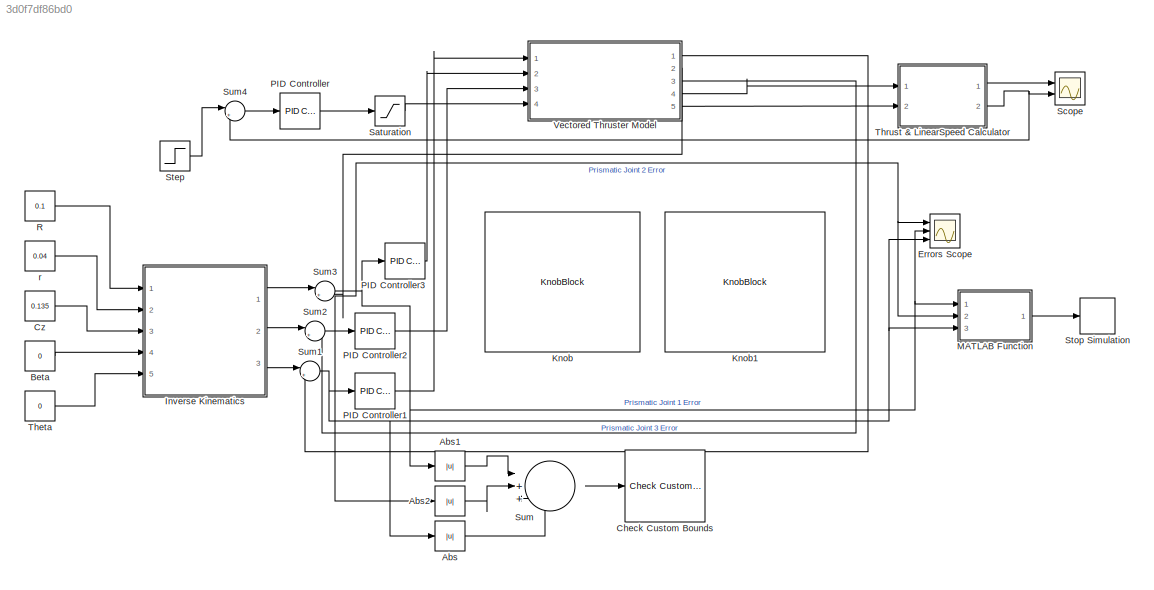
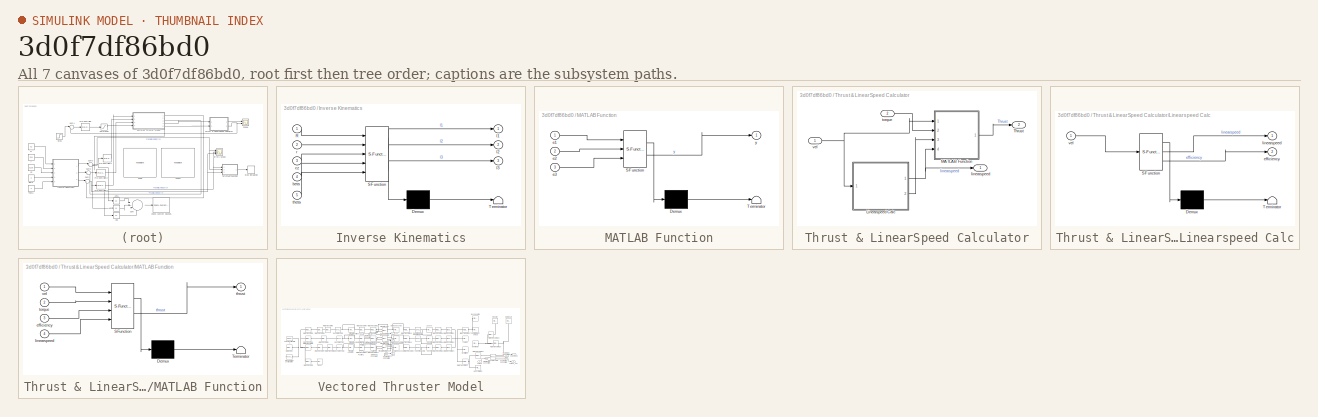
[diagram: thumbnail index - all 7 canvases of the model, root first then tree order]
MODEL slx_3d0f7df86bd0
KIND model
CONFIG AbsTol = auto
CONFIG EnableMultiTasking = off
CONFIG FixedStep = 0.0001
CONFIG MaxStep = auto
CONFIG MinStep = auto
CONFIG RelTol = 1e-3
CONFIG SampleTimeConstraint = Unconstrained
CONFIG SolverName = VariableStepAuto
CONFIG StartTime = 0.0
CONFIG StopTime = 50
BLOCK [Abs] Abs
  SaturateOnIntegerOverflow = off
BLOCK [Abs] Abs1
  SaturateOnIntegerOverflow = off
BLOCK [Abs] Abs2
  SaturateOnIntegerOverflow = off
BLOCK [Constant] Beta
  Value = 0
BLOCK [Reference] Check Custom Bounds  REF=checkpacklib/Check Custom Bounds
  InstantiateOnLoad = on
  Ports = [1]
  SourceBlock = checkpacklib/Check Custom Bounds
  SourceProductBaseCode = CT,ID,MT,SO
  SourceType = Checks_CustomBounds
BLOCK [Constant] Cz
  Value = 0.135
BLOCK [Scope] Errors Scope
  Floating = off
  NumInputPorts = 3
  Ports = [3]
  ScopeSpecificationString = Simulink.scopes.TimeScopeBlockCfg('CurrentConfiguration', extmgr.ConfigurationSet(extmgr.Configuration('Core','General UI',true),extmgr.Configuration('Core','Source UI',true),extmgr.Configuration('Sources','WiredSimulink',true,'DataLoggingVariableName','ScopeData2'),extmgr.Configuration('Visuals','Time Domain',true,'SerializedDisplays',{struct('MinYLimReal','-0.05642','MaxYLimReal','0.05958','YLab...<+1601ch>
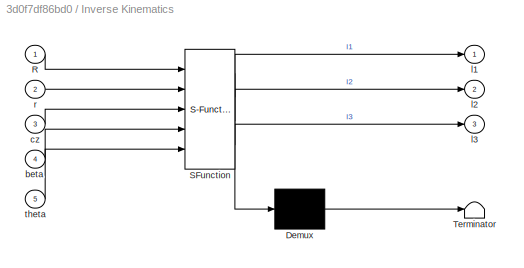
BLOCK [SubSystem] Inverse Kinematics
  ErrorFcn = Stateflow.Translate.translate
  PermitHierarchicalResolution = ExplicitOnly
  Ports = [5, 3]
  RequestExecContextInheritance = off
  SFBlockType = MATLAB Function
  TreatAsAtomicUnit = on
BLOCK [Demux] Inverse Kinematics/ Demux 
  Outputs = 1
  Ports = [1, 1]
BLOCK [S-Function] Inverse Kinematics/ SFunction 
  EnableBusSupport = on
  FunctionName = sf_sfun
  PortCounts = [5 4]
  Ports = [5, 4]
  SFcnIsStateOwnerBlock = off
  SFunctionDeploymentMode = off
  Tag = Stateflow S-Function 2
BLOCK [Terminator] Inverse Kinematics/ Terminator 
BLOCK [Inport] Inverse Kinematics/R
BLOCK [Inport] Inverse Kinematics/beta
  Port = 4
BLOCK [Inport] Inverse Kinematics/cz
  Port = 3
BLOCK [Outport] Inverse Kinematics/l1
BLOCK [Outport] Inverse Kinematics/l2
  Port = 2
BLOCK [Outport] Inverse Kinematics/l3
  Port = 3
BLOCK [Inport] Inverse Kinematics/r
  Port = 2
BLOCK [Inport] Inverse Kinematics/theta
  Port = 5
BLOCK [KnobBlock] Knob
  ScaleMax = 20
  ScaleMin = -20
  TickInterval = 5
BLOCK [KnobBlock] Knob1
  ScaleMax = 20
  ScaleMin = -20
  TickInterval = 5
BLOCK [SubSystem] MATLAB Function
  ErrorFcn = Stateflow.Translate.translate
  PermitHierarchicalResolution = ExplicitOnly
  Ports = [3, 1]
  RequestExecContextInheritance = off
  SFBlockType = MATLAB Function
  TreatAsAtomicUnit = on
BLOCK [Demux] MATLAB Function/ Demux 
  Outputs = 1
  Ports = [1, 1]
BLOCK [S-Function] MATLAB Function/ SFunction 
  EnableBusSupport = on
  FunctionName = sf_sfun
  PortCounts = [3 2]
  Ports = [3, 2]
  SFcnIsStateOwnerBlock = off
  SFunctionDeploymentMode = off
  Tag = Stateflow S-Function 1
BLOCK [Terminator] MATLAB Function/ Terminator 
BLOCK [Inport] MATLAB Function/e1
BLOCK [Inport] MATLAB Function/e2
  Port = 2
BLOCK [Inport] MATLAB Function/e3
  Port = 3
BLOCK [Outport] MATLAB Function/y
BLOCK [Reference] PID Controller  REF=slpidlib/PID Controller
  Ports = [1, 1]
  SourceBlock = slpidlib/PID Controller
  SourceProductBaseCode = SL
  SourceType = PID 1dof
BLOCK [Reference] PID Controller1  REF=slpidlib/PID Controller
  Ports = [1, 1]
  SourceBlock = slpidlib/PID Controller
  SourceProductBaseCode = SL
  SourceType = PID 1dof
BLOCK [Reference] PID Controller2  REF=slpidlib/PID Controller
  Ports = [1, 1]
  SourceBlock = slpidlib/PID Controller
  SourceProductBaseCode = SL
  SourceType = PID 1dof
BLOCK [Reference] PID Controller3  REF=slpidlib/PID Controller
  Ports = [1, 1]
  SourceBlock = slpidlib/PID Controller
  SourceProductBaseCode = SL
  SourceType = PID 1dof
BLOCK [Constant] R
  Value = 0.1
BLOCK [Saturate] Saturation
  LowerLimit = 0
  UpperLimit = 500
BLOCK [Scope] Scope
  Floating = off
  NumInputPorts = 2
  Ports = [2]
  ScopeSpecificationString = Simulink.scopes.TimeScopeBlockCfg('CurrentConfiguration', extmgr.ConfigurationSet(extmgr.Configuration('Core','General UI',true),extmgr.Configuration('Core','Source UI',true),extmgr.Configuration('Sources','WiredSimulink',true,'DataLoggingVariableName','ScopeData1'),extmgr.Configuration('Visuals','Time Domain',true),extmgr.Configuration('Tools','Plot Navigation',true),extmgr.Configuration('Tools',...<+40ch>
BLOCK [Step] Step
  After = 98
  SampleTime = 0
BLOCK [Stop] Stop Simulation
BLOCK [Sum] Sum
  Inputs = |+++
  Ports = [3, 1]
BLOCK [Sum] Sum1
  Inputs = |+-
  Ports = [2, 1]
BLOCK [Sum] Sum2
  Inputs = |+-
  Ports = [2, 1]
BLOCK [Sum] Sum3
  Inputs = |+-
  Ports = [2, 1]
BLOCK [Sum] Sum4
  Inputs = |+-
  Ports = [2, 1]
BLOCK [Constant] Theta
  Value = 0
BLOCK [SubSystem] Thrust & LinearSpeed Calculator
  Ports = [2, 2]
  RequestExecContextInheritance = off
BLOCK [SubSystem] Thrust & LinearSpeed Calculator/Linearspeed Calc
  ErrorFcn = Stateflow.Translate.translate
  PermitHierarchicalResolution = ExplicitOnly
  Ports = [1, 2]
  RequestExecContextInheritance = off
  SFBlockType = MATLAB Function
  TreatAsAtomicUnit = on
BLOCK [Demux] Thrust & LinearSpeed Calculator/Linearspeed Calc/ Demux 
  Outputs = 1
  Ports = [1, 1]
BLOCK [S-Function] Thrust & LinearSpeed Calculator/Linearspeed Calc/ SFunction 
  EnableBusSupport = on
  FunctionName = sf_sfun
  PortCounts = [1 3]
  Ports = [1, 3]
  SFcnIsStateOwnerBlock = off
  SFunctionDeploymentMode = off
  Tag = Stateflow S-Function 3
BLOCK [Terminator] Thrust & LinearSpeed Calculator/Linearspeed Calc/ Terminator 
BLOCK [Outport] Thrust & LinearSpeed Calculator/Linearspeed Calc/efficiency
  Port = 2
BLOCK [Outport] Thrust & LinearSpeed Calculator/Linearspeed Calc/linearspeed
BLOCK [Inport] Thrust & LinearSpeed Calculator/Linearspeed Calc/vel
BLOCK [SubSystem] Thrust & LinearSpeed Calculator/MATLAB Function
  ErrorFcn = Stateflow.Translate.translate
  PermitHierarchicalResolution = ExplicitOnly
  Ports = [4, 1]
  RequestExecContextInheritance = off
  SFBlockType = MATLAB Function
  TreatAsAtomicUnit = on
BLOCK [Demux] Thrust & LinearSpeed Calculator/MATLAB Function/ Demux 
  Outputs = 1
  Ports = [1, 1]
BLOCK [S-Function] Thrust & LinearSpeed Calculator/MATLAB Function/ SFunction 
  EnableBusSupport = on
  FunctionName = sf_sfun
  PortCounts = [4 2]
  Ports = [4, 2]
  SFcnIsStateOwnerBlock = off
  SFunctionDeploymentMode = off
  Tag = Stateflow S-Function 4
BLOCK [Terminator] Thrust & LinearSpeed Calculator/MATLAB Function/ Terminator 
BLOCK [Inport] Thrust & LinearSpeed Calculator/MATLAB Function/efficiency
  Port = 3
BLOCK [Inport] Thrust & LinearSpeed Calculator/MATLAB Function/linearspeed
  Port = 4
BLOCK [Outport] Thrust & LinearSpeed Calculator/MATLAB Function/thrust
BLOCK [Inport] Thrust & LinearSpeed Calculator/MATLAB Function/torque
  Port = 2
BLOCK [Inport] Thrust & LinearSpeed Calculator/MATLAB Function/vel
BLOCK [Outport] Thrust & LinearSpeed Calculator/Thrust
  Port = 2
BLOCK [Outport] Thrust & LinearSpeed Calculator/linearspeed
BLOCK [Inport] Thrust & LinearSpeed Calculator/torque
  Port = 2
BLOCK [Inport] Thrust & LinearSpeed Calculator/vel
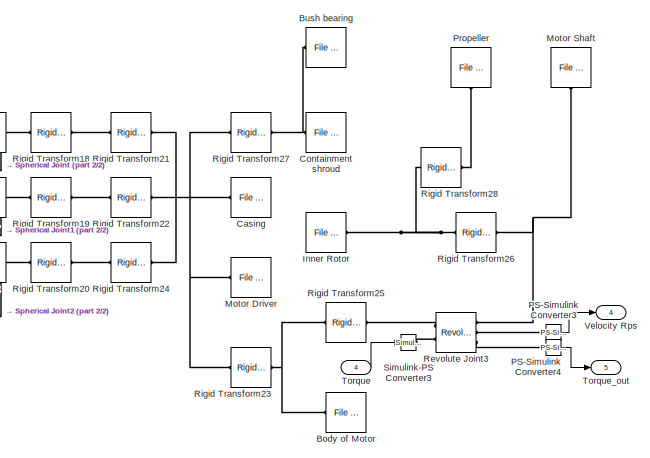
[diagram: Vectored Thruster Model - part 1/2, right side, full height]
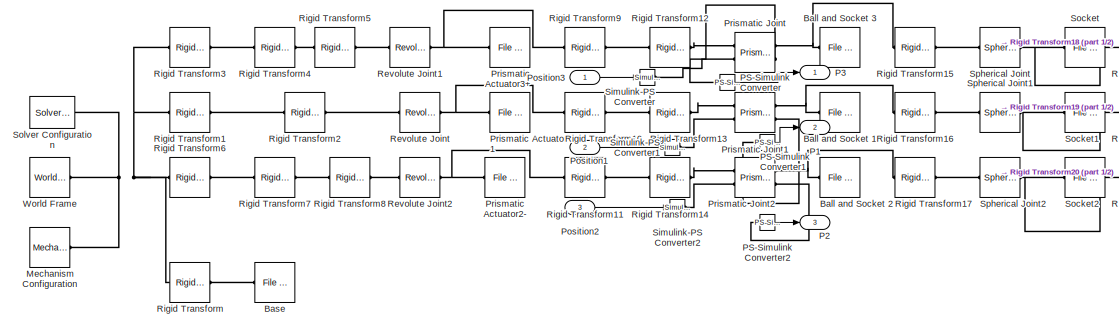
[diagram: Vectored Thruster Model - part 2/2, middle left region]
BLOCK [SubSystem] Vectored Thruster Model
  Ports = [4, 5]
  RequestExecContextInheritance = off
BLOCK [Reference] Vectored Thruster Model/Ball and Socket 1  REF=sm_lib/Body Elements/File Solid
  Ports = [0, 0, 0, 0, 0, 0, 1]
  SourceBlock = sm_lib/Body Elements/File Solid
  SourceProductBaseCode = MS
  SourceType = File Solid
BLOCK [Reference] Vectored Thruster Model/Ball and Socket 2  REF=sm_lib/Body Elements/File Solid
  Ports = [0, 0, 0, 0, 0, 0, 1]
  SourceBlock = sm_lib/Body Elements/File Solid
  SourceProductBaseCode = MS
  SourceType = File Solid
BLOCK [Reference] Vectored Thruster Model/Ball and Socket 3  REF=sm_lib/Body Elements/File Solid
  Ports = [0, 0, 0, 0, 0, 0, 1]
  SourceBlock = sm_lib/Body Elements/File Solid
  SourceProductBaseCode = MS
  SourceType = File Solid
BLOCK [Reference] Vectored Thruster Model/Base  REF=sm_lib/Body Elements/File Solid
  Ports = [0, 0, 0, 0, 0, 0, 1]
  SourceBlock = sm_lib/Body Elements/File Solid
  SourceProductBaseCode = MS
  SourceType = File Solid
BLOCK [Reference] Vectored Thruster Model/Body of Motor  REF=sm_lib/Body Elements/File Solid
  Ports = [0, 0, 0, 0, 0, 0, 1]
  SourceBlock = sm_lib/Body Elements/File Solid
  SourceProductBaseCode = MS
  SourceType = File Solid
BLOCK [Reference] Vectored Thruster Model/Bush bearing  REF=sm_lib/Body Elements/File Solid
  Ports = [0, 0, 0, 0, 0, 0, 1]
  SourceBlock = sm_lib/Body Elements/File Solid
  SourceProductBaseCode = MS
  SourceType = File Solid
BLOCK [Reference] Vectored Thruster Model/Casing  REF=sm_lib/Body Elements/File Solid
  Ports = [0, 0, 0, 0, 0, 0, 1]
  SourceBlock = sm_lib/Body Elements/File Solid
  SourceProductBaseCode = MS
  SourceType = File Solid
BLOCK [Reference] Vectored Thruster Model/Containment shroud  REF=sm_lib/Body Elements/File Solid
  Ports = [0, 0, 0, 0, 0, 0, 1]
  SourceBlock = sm_lib/Body Elements/File Solid
  SourceProductBaseCode = MS
  SourceType = File Solid
BLOCK [Reference] Vectored Thruster Model/Inner Rotor  REF=sm_lib/Body Elements/File Solid
  Ports = [0, 0, 0, 0, 0, 0, 1]
  SourceBlock = sm_lib/Body Elements/File Solid
  SourceProductBaseCode = MS
  SourceType = File Solid
BLOCK [Reference] Vectored Thruster Model/Mechanism Configuration  REF=sm_lib/Utilities/Mechanism
Configuration
  Ports = [0, 0, 0, 0, 0, 0, 1]
  SourceBlock = sm_lib/Utilities/Mechanism\nConfiguration
  SourceProductBaseCode = MS
  SourceType = Mechanism\nConfiguration
BLOCK [Reference] Vectored Thruster Model/Motor Driver  REF=sm_lib/Body Elements/File Solid
  Ports = [0, 0, 0, 0, 0, 0, 1]
  SourceBlock = sm_lib/Body Elements/File Solid
  SourceProductBaseCode = MS
  SourceType = File Solid
BLOCK [Reference] Vectored Thruster Model/Motor Shaft  REF=sm_lib/Body Elements/File Solid
  NameLocation = right
  Ports = [0, 0, 0, 0, 0, 0, 1]
  SourceBlock = sm_lib/Body Elements/File Solid
  SourceProductBaseCode = MS
  SourceType = File Solid
BLOCK [Outport] Vectored Thruster Model/P1
  Port = 2
BLOCK [Outport] Vectored Thruster Model/P2
  Port = 3
BLOCK [Outport] Vectored Thruster Model/P3
BLOCK [Reference] Vectored Thruster Model/PS-Simulink Converter  REF=nesl_utility/PS-Simulink
Converter
  Ports = [0, 1, 0, 0, 0, 1]
  SourceBlock = nesl_utility/PS-Simulink\nConverter
  SourceProductBaseCode = PW,SS
  SourceType = PS-Simulink\nConverter
BLOCK [Reference] Vectored Thruster Model/PS-Simulink Converter1  REF=nesl_utility/PS-Simulink
Converter
  Ports = [0, 1, 0, 0, 0, 1]
  SourceBlock = nesl_utility/PS-Simulink\nConverter
  SourceProductBaseCode = PW,SS
  SourceType = PS-Simulink\nConverter
BLOCK [Reference] Vectored Thruster Model/PS-Simulink Converter2  REF=nesl_utility/PS-Simulink
Converter
  Ports = [0, 1, 0, 0, 0, 1]
  SourceBlock = nesl_utility/PS-Simulink\nConverter
  SourceProductBaseCode = PW,SS
  SourceType = PS-Simulink\nConverter
BLOCK [Reference] Vectored Thruster Model/PS-Simulink Converter3  REF=nesl_utility/PS-Simulink
Converter
  Ports = [0, 1, 0, 0, 0, 1]
  SourceBlock = nesl_utility/PS-Simulink\nConverter
  SourceProductBaseCode = PW,SS
  SourceType = PS-Simulink\nConverter
BLOCK [Reference] Vectored Thruster Model/PS-Simulink Converter4  REF=nesl_utility/PS-Simulink
Converter
  Ports = [0, 1, 0, 0, 0, 1]
  SourceBlock = nesl_utility/PS-Simulink\nConverter
  SourceProductBaseCode = PW,SS
  SourceType = PS-Simulink\nConverter
BLOCK [Inport] Vectored Thruster Model/Position1
  Port = 2
BLOCK [Inport] Vectored Thruster Model/Position2
  Port = 3
BLOCK [Inport] Vectored Thruster Model/Position3
BLOCK [Reference] Vectored Thruster Model/Prismatic Actuator 1  REF=sm_lib/Body Elements/File Solid
  Ports = [0, 0, 0, 0, 0, 0, 1]
  SourceBlock = sm_lib/Body Elements/File Solid
  SourceProductBaseCode = MS
  SourceType = File Solid
BLOCK [Reference] Vectored Thruster Model/Prismatic Actuator2-  REF=sm_lib/Body Elements/File Solid
  Ports = [0, 0, 0, 0, 0, 0, 1]
  SourceBlock = sm_lib/Body Elements/File Solid
  SourceProductBaseCode = MS
  SourceType = File Solid
BLOCK [Reference] Vectored Thruster Model/Prismatic Actuator3+  REF=sm_lib/Body Elements/File Solid
  Ports = [0, 0, 0, 0, 0, 0, 1]
  SourceBlock = sm_lib/Body Elements/File Solid
  SourceProductBaseCode = MS
  SourceType = File Solid
BLOCK [Reference] Vectored Thruster Model/Prismatic Joint  REF=sm_lib/Joints/Prismatic
Joint
  Ports = [0, 0, 0, 0, 0, 2, 2]
  SourceBlock = sm_lib/Joints/Prismatic\nJoint
  SourceProductBaseCode = MS
  SourceType = Prismatic\nJoint
BLOCK [Reference] Vectored Thruster Model/Prismatic Joint1  REF=sm_lib/Joints/Prismatic
Joint
  Ports = [0, 0, 0, 0, 0, 2, 2]
  SourceBlock = sm_lib/Joints/Prismatic\nJoint
  SourceProductBaseCode = MS
  SourceType = Prismatic\nJoint
BLOCK [Reference] Vectored Thruster Model/Prismatic Joint2  REF=sm_lib/Joints/Prismatic
Joint
  Ports = [0, 0, 0, 0, 0, 2, 2]
  SourceBlock = sm_lib/Joints/Prismatic\nJoint
  SourceProductBaseCode = MS
  SourceType = Prismatic\nJoint
BLOCK [Reference] Vectored Thruster Model/Propeller  REF=sm_lib/Body Elements/File Solid
  NameLocation = left
  Ports = [0, 0, 0, 0, 0, 0, 1]
  SourceBlock = sm_lib/Body Elements/File Solid
  SourceProductBaseCode = MS
  SourceType = File Solid
BLOCK [Reference] Vectored Thruster Model/Revolute Joint  REF=sm_lib/Joints/Revolute Joint
  Ports = [0, 0, 0, 0, 0, 1, 1]
  SourceBlock = sm_lib/Joints/Revolute Joint
  SourceProductBaseCode = MS
  SourceType = Revolute Joint
BLOCK [Reference] Vectored Thruster Model/Revolute Joint1  REF=sm_lib/Joints/Revolute Joint
  Ports = [0, 0, 0, 0, 0, 1, 1]
  SourceBlock = sm_lib/Joints/Revolute Joint
  SourceProductBaseCode = MS
  SourceType = Revolute Joint
BLOCK [Reference] Vectored Thruster Model/Revolute Joint2  REF=sm_lib/Joints/Revolute Joint
  Ports = [0, 0, 0, 0, 0, 1, 1]
  SourceBlock = sm_lib/Joints/Revolute Joint
  SourceProductBaseCode = MS
  SourceType = Revolute Joint
BLOCK [Reference] Vectored Thruster Model/Revolute Joint3  REF=sm_lib/Joints/Revolute Joint
  Ports = [0, 0, 0, 0, 0, 2, 3]
  SourceBlock = sm_lib/Joints/Revolute Joint
  SourceProductBaseCode = MS
  SourceType = Revolute Joint
BLOCK [Reference] Vectored Thruster Model/Rigid Transform  REF=sm_lib/Frames and
Transforms/Rigid
Transform
  Ports = [0, 0, 0, 0, 0, 1, 1]
  SourceBlock = sm_lib/Frames and\nTransforms/Rigid\nTransform
  SourceProductBaseCode = MS
  SourceType = Rigid\nTransform
BLOCK [Reference] Vectored Thruster Model/Rigid Transform1  REF=sm_lib/Frames and
Transforms/Rigid
Transform
  Ports = [0, 0, 0, 0, 0, 1, 1]
  SourceBlock = sm_lib/Frames and\nTransforms/Rigid\nTransform
  SourceProductBaseCode = MS
  SourceType = Rigid\nTransform
BLOCK [Reference] Vectored Thruster Model/Rigid Transform10  REF=sm_lib/Frames and
Transforms/Rigid
Transform
  Ports = [0, 0, 0, 0, 0, 1, 1]
  SourceBlock = sm_lib/Frames and\nTransforms/Rigid\nTransform
  SourceProductBaseCode = MS
  SourceType = Rigid\nTransform
BLOCK [Reference] Vectored Thruster Model/Rigid Transform11  REF=sm_lib/Frames and
Transforms/Rigid
Transform
  Ports = [0, 0, 0, 0, 0, 1, 1]
  SourceBlock = sm_lib/Frames and\nTransforms/Rigid\nTransform
  SourceProductBaseCode = MS
  SourceType = Rigid\nTransform
BLOCK [Reference] Vectored Thruster Model/Rigid Transform12  REF=sm_lib/Frames and
Transforms/Rigid
Transform
  Ports = [0, 0, 0, 0, 0, 1, 1]
  SourceBlock = sm_lib/Frames and\nTransforms/Rigid\nTransform
  SourceProductBaseCode = MS
  SourceType = Rigid\nTransform
BLOCK [Reference] Vectored Thruster Model/Rigid Transform13  REF=sm_lib/Frames and
Transforms/Rigid
Transform
  Ports = [0, 0, 0, 0, 0, 1, 1]
  SourceBlock = sm_lib/Frames and\nTransforms/Rigid\nTransform
  SourceProductBaseCode = MS
  SourceType = Rigid\nTransform
BLOCK [Reference] Vectored Thruster Model/Rigid Transform14  REF=sm_lib/Frames and
Transforms/Rigid
Transform
  Ports = [0, 0, 0, 0, 0, 1, 1]
  SourceBlock = sm_lib/Frames and\nTransforms/Rigid\nTransform
  SourceProductBaseCode = MS
  SourceType = Rigid\nTransform
BLOCK [Reference] Vectored Thruster Model/Rigid Transform15  REF=sm_lib/Frames and
Transforms/Rigid
Transform
  Ports = [0, 0, 0, 0, 0, 1, 1]
  SourceBlock = sm_lib/Frames and\nTransforms/Rigid\nTransform
  SourceProductBaseCode = MS
  SourceType = Rigid\nTransform
BLOCK [Reference] Vectored Thruster Model/Rigid Transform16  REF=sm_lib/Frames and
Transforms/Rigid
Transform
  Ports = [0, 0, 0, 0, 0, 1, 1]
  SourceBlock = sm_lib/Frames and\nTransforms/Rigid\nTransform
  SourceProductBaseCode = MS
  SourceType = Rigid\nTransform
BLOCK [Reference] Vectored Thruster Model/Rigid Transform17  REF=sm_lib/Frames and
Transforms/Rigid
Transform
  Ports = [0, 0, 0, 0, 0, 1, 1]
  SourceBlock = sm_lib/Frames and\nTransforms/Rigid\nTransform
  SourceProductBaseCode = MS
  SourceType = Rigid\nTransform
BLOCK [Reference] Vectored Thruster Model/Rigid Transform18  REF=sm_lib/Frames and
Transforms/Rigid
Transform
  Ports = [0, 0, 0, 0, 0, 1, 1]
  SourceBlock = sm_lib/Frames and\nTransforms/Rigid\nTransform
  SourceProductBaseCode = MS
  SourceType = Rigid\nTransform
BLOCK [Reference] Vectored Thruster Model/Rigid Transform19  REF=sm_lib/Frames and
Transforms/Rigid
Transform
  Ports = [0, 0, 0, 0, 0, 1, 1]
  SourceBlock = sm_lib/Frames and\nTransforms/Rigid\nTransform
  SourceProductBaseCode = MS
  SourceType = Rigid\nTransform
BLOCK [Reference] Vectored Thruster Model/Rigid Transform2  REF=sm_lib/Frames and
Transforms/Rigid
Transform
  Ports = [0, 0, 0, 0, 0, 1, 1]
  SourceBlock = sm_lib/Frames and\nTransforms/Rigid\nTransform
  SourceProductBaseCode = MS
  SourceType = Rigid\nTransform
BLOCK [Reference] Vectored Thruster Model/Rigid Transform20  REF=sm_lib/Frames and
Transforms/Rigid
Transform
  Ports = [0, 0, 0, 0, 0, 1, 1]
  SourceBlock = sm_lib/Frames and\nTransforms/Rigid\nTransform
  SourceProductBaseCode = MS
  SourceType = Rigid\nTransform
BLOCK [Reference] Vectored Thruster Model/Rigid Transform21  REF=sm_lib/Frames and
Transforms/Rigid
Transform
  Ports = [0, 0, 0, 0, 0, 1, 1]
  SourceBlock = sm_lib/Frames and\nTransforms/Rigid\nTransform
  SourceProductBaseCode = MS
  SourceType = Rigid\nTransform
BLOCK [Reference] Vectored Thruster Model/Rigid Transform22  REF=sm_lib/Frames and
Transforms/Rigid
Transform
  Ports = [0, 0, 0, 0, 0, 1, 1]
  SourceBlock = sm_lib/Frames and\nTransforms/Rigid\nTransform
  SourceProductBaseCode = MS
  SourceType = Rigid\nTransform
BLOCK [Reference] Vectored Thruster Model/Rigid Transform23  REF=sm_lib/Frames and
Transforms/Rigid
Transform
  Ports = [0, 0, 0, 0, 0, 1, 1]
  SourceBlock = sm_lib/Frames and\nTransforms/Rigid\nTransform
  SourceProductBaseCode = MS
  SourceType = Rigid\nTransform
BLOCK [Reference] Vectored Thruster Model/Rigid Transform24  REF=sm_lib/Frames and
Transforms/Rigid
Transform
  Ports = [0, 0, 0, 0, 0, 1, 1]
  SourceBlock = sm_lib/Frames and\nTransforms/Rigid\nTransform
  SourceProductBaseCode = MS
  SourceType = Rigid\nTransform
BLOCK [Reference] Vectored Thruster Model/Rigid Transform25  REF=sm_lib/Frames and
Transforms/Rigid
Transform
  Ports = [0, 0, 0, 0, 0, 1, 1]
  SourceBlock = sm_lib/Frames and\nTransforms/Rigid\nTransform
  SourceProductBaseCode = MS
  SourceType = Rigid\nTransform
BLOCK [Reference] Vectored Thruster Model/Rigid Transform26  REF=sm_lib/Frames and
Transforms/Rigid
Transform
  Ports = [0, 0, 0, 0, 0, 1, 1]
  SourceBlock = sm_lib/Frames and\nTransforms/Rigid\nTransform
  SourceProductBaseCode = MS
  SourceType = Rigid\nTransform
BLOCK [Reference] Vectored Thruster Model/Rigid Transform27  REF=sm_lib/Frames and
Transforms/Rigid
Transform
  Ports = [0, 0, 0, 0, 0, 1, 1]
  SourceBlock = sm_lib/Frames and\nTransforms/Rigid\nTransform
  SourceProductBaseCode = MS
  SourceType = Rigid\nTransform
BLOCK [Reference] Vectored Thruster Model/Rigid Transform28  REF=sm_lib/Frames and
Transforms/Rigid
Transform
  Ports = [0, 0, 0, 0, 0, 1, 1]
  SourceBlock = sm_lib/Frames and\nTransforms/Rigid\nTransform
  SourceProductBaseCode = MS
  SourceType = Rigid\nTransform
BLOCK [Reference] Vectored Thruster Model/Rigid Transform3  REF=sm_lib/Frames and
Transforms/Rigid
Transform
  Ports = [0, 0, 0, 0, 0, 1, 1]
  SourceBlock = sm_lib/Frames and\nTransforms/Rigid\nTransform
  SourceProductBaseCode = MS
  SourceType = Rigid\nTransform
BLOCK [Reference] Vectored Thruster Model/Rigid Transform4  REF=sm_lib/Frames and
Transforms/Rigid
Transform
  Ports = [0, 0, 0, 0, 0, 1, 1]
  SourceBlock = sm_lib/Frames and\nTransforms/Rigid\nTransform
  SourceProductBaseCode = MS
  SourceType = Rigid\nTransform
BLOCK [Reference] Vectored Thruster Model/Rigid Transform5  REF=sm_lib/Frames and
Transforms/Rigid
Transform
  Ports = [0, 0, 0, 0, 0, 1, 1]
  SourceBlock = sm_lib/Frames and\nTransforms/Rigid\nTransform
  SourceProductBaseCode = MS
  SourceType = Rigid\nTransform
BLOCK [Reference] Vectored Thruster Model/Rigid Transform6  REF=sm_lib/Frames and
Transforms/Rigid
Transform
  Ports = [0, 0, 0, 0, 0, 1, 1]
  SourceBlock = sm_lib/Frames and\nTransforms/Rigid\nTransform
  SourceProductBaseCode = MS
  SourceType = Rigid\nTransform
BLOCK [Reference] Vectored Thruster Model/Rigid Transform7  REF=sm_lib/Frames and
Transforms/Rigid
Transform
  Ports = [0, 0, 0, 0, 0, 1, 1]
  SourceBlock = sm_lib/Frames and\nTransforms/Rigid\nTransform
  SourceProductBaseCode = MS
  SourceType = Rigid\nTransform
BLOCK [Reference] Vectored Thruster Model/Rigid Transform8  REF=sm_lib/Frames and
Transforms/Rigid
Transform
  Ports = [0, 0, 0, 0, 0, 1, 1]
  SourceBlock = sm_lib/Frames and\nTransforms/Rigid\nTransform
  SourceProductBaseCode = MS
  SourceType = Rigid\nTransform
BLOCK [Reference] Vectored Thruster Model/Rigid Transform9  REF=sm_lib/Frames and
Transforms/Rigid
Transform
  Ports = [0, 0, 0, 0, 0, 1, 1]
  SourceBlock = sm_lib/Frames and\nTransforms/Rigid\nTransform
  SourceProductBaseCode = MS
  SourceType = Rigid\nTransform
BLOCK [Reference] Vectored Thruster Model/Simulink-PS Converter  REF=nesl_utility/Simulink-PS
Converter
  Ports = [1, 0, 0, 0, 0, 0, 1]
  SourceBlock = nesl_utility/Simulink-PS\nConverter
  SourceProductBaseCode = PW,SS
  SourceType = Simulink-PS\nConverter
BLOCK [Reference] Vectored Thruster Model/Simulink-PS Converter1  REF=nesl_utility/Simulink-PS
Converter
  Ports = [1, 0, 0, 0, 0, 0, 1]
  SourceBlock = nesl_utility/Simulink-PS\nConverter
  SourceProductBaseCode = PW,SS
  SourceType = Simulink-PS\nConverter
BLOCK [Reference] Vectored Thruster Model/Simulink-PS Converter2  REF=nesl_utility/Simulink-PS
Converter
  Ports = [1, 0, 0, 0, 0, 0, 1]
  SourceBlock = nesl_utility/Simulink-PS\nConverter
  SourceProductBaseCode = PW,SS
  SourceType = Simulink-PS\nConverter
BLOCK [Reference] Vectored Thruster Model/Simulink-PS Converter3  REF=nesl_utility/Simulink-PS
Converter
  Ports = [1, 0, 0, 0, 0, 0, 1]
  SourceBlock = nesl_utility/Simulink-PS\nConverter
  SourceProductBaseCode = PW,SS
  SourceType = Simulink-PS\nConverter
BLOCK [Reference] Vectored Thruster Model/Socket  REF=sm_lib/Body Elements/File Solid
  Ports = [0, 0, 0, 0, 0, 0, 1]
  SourceBlock = sm_lib/Body Elements/File Solid
  SourceProductBaseCode = MS
  SourceType = File Solid
BLOCK [Reference] Vectored Thruster Model/Socket1  REF=sm_lib/Body Elements/File Solid
  Ports = [0, 0, 0, 0, 0, 0, 1]
  SourceBlock = sm_lib/Body Elements/File Solid
  SourceProductBaseCode = MS
  SourceType = File Solid
BLOCK [Reference] Vectored Thruster Model/Socket2  REF=sm_lib/Body Elements/File Solid
  Ports = [0, 0, 0, 0, 0, 0, 1]
  SourceBlock = sm_lib/Body Elements/File Solid
  SourceProductBaseCode = MS
  SourceType = File Solid
BLOCK [Reference] Vectored Thruster Model/Solver Configuration  REF=nesl_utility/Solver
Configuration
  Ports = [0, 0, 0, 0, 0, 0, 1]
  SourceBlock = nesl_utility/Solver\nConfiguration
  SourceProductBaseCode = PW,SS
  SourceType = Solver\nConfiguration
BLOCK [Reference] Vectored Thruster Model/Spherical Joint  REF=sm_lib/Joints/Spherical
Joint
  Ports = [0, 0, 0, 0, 0, 1, 1]
  SourceBlock = sm_lib/Joints/Spherical\nJoint
  SourceProductBaseCode = MS
  SourceType = Spherical\nJoint
BLOCK [Reference] Vectored Thruster Model/Spherical Joint1  REF=sm_lib/Joints/Spherical
Joint
  Ports = [0, 0, 0, 0, 0, 1, 1]
  SourceBlock = sm_lib/Joints/Spherical\nJoint
  SourceProductBaseCode = MS
  SourceType = Spherical\nJoint
BLOCK [Reference] Vectored Thruster Model/Spherical Joint2  REF=sm_lib/Joints/Spherical
Joint
  Ports = [0, 0, 0, 0, 0, 1, 1]
  SourceBlock = sm_lib/Joints/Spherical\nJoint
  SourceProductBaseCode = MS
  SourceType = Spherical\nJoint
BLOCK [Inport] Vectored Thruster Model/Torque
  NameLocation = right
  Port = 4
BLOCK [Outport] Vectored Thruster Model/Torque_out
  Port = 5
BLOCK [Outport] Vectored Thruster Model/Velocity Rps
  Port = 4
BLOCK [Reference] Vectored Thruster Model/World Frame  REF=sm_lib/Frames and
Transforms/World Frame
  Ports = [0, 0, 0, 0, 0, 0, 1]
  SourceBlock = sm_lib/Frames and\nTransforms/World Frame
  SourceProductBaseCode = MS
  SourceType = World Frame
BLOCK [Constant] r
  Value = 0.04
LINE Abs1:1 -> Sum:1
LINE Abs2:1 -> Sum:2
LINE Abs:1 -> Sum:3
LINE Beta:1 -> Inverse Kinematics:4
LINE Cz:1 -> Inverse Kinematics:3
LINE Inverse Kinematics:1 -> Sum3:1
LINE Inverse Kinematics:2 -> Sum2:1
LINE Inverse Kinematics:3 -> Sum1:1
LINE MATLAB Function:1 -> Stop Simulation:1
LINE PID Controller1:1 -> Vectored Thruster Model:1
LINE PID Controller2:1 -> Vectored Thruster Model:3
LINE PID Controller3:1 -> Vectored Thruster Model:2
LINE PID Controller:1 -> Saturation:1
LINE R:1 -> Inverse Kinematics:1
LINE Saturation:1 -> Vectored Thruster Model:4
LINE Step:1 -> Sum4:1
NET Sum1:1 -> Abs:1, Errors Scope:3, MATLAB Function:3, PID Controller1:1
NET Sum2:1 -> Abs2:1, Errors Scope:1, MATLAB Function:2, PID Controller2:1
NET Sum3:1 -> Abs1:1, Errors Scope:2, MATLAB Function:1, PID Controller3:1
LINE Sum4:1 -> PID Controller:1
LINE Sum:1 -> Check Custom Bounds:1
LINE Theta:1 -> Inverse Kinematics:5
NET Thrust & LinearSpeed Calculator/Linearspeed Calc:1 -> Thrust & LinearSpeed Calculator/MATLAB Function:4, Thrust & LinearSpeed Calculator/linearspeed:1
LINE Thrust & LinearSpeed Calculator/Linearspeed Calc:2 -> Thrust & LinearSpeed Calculator/MATLAB Function:3
LINE Thrust & LinearSpeed Calculator/MATLAB Function:1 -> Thrust & LinearSpeed Calculator/Thrust:1
LINE Thrust & LinearSpeed Calculator/torque:1 -> Thrust & LinearSpeed Calculator/MATLAB Function:2
NET Thrust & LinearSpeed Calculator/vel:1 -> Thrust & LinearSpeed Calculator/Linearspeed Calc:1, Thrust & LinearSpeed Calculator/MATLAB Function:1
LINE Thrust & LinearSpeed Calculator:1 -> Scope:1
NET Thrust & LinearSpeed Calculator:2 -> Scope:2, Sum4:2
LINE Vectored Thruster Model/PS-Simulink Converter1:1 -> Vectored Thruster Model/P1:1
LINE Vectored Thruster Model/PS-Simulink Converter2:1 -> Vectored Thruster Model/P2:1
LINE Vectored Thruster Model/PS-Simulink Converter3:1 -> Vectored Thruster Model/Velocity Rps:1
LINE Vectored Thruster Model/PS-Simulink Converter4:1 -> Vectored Thruster Model/Torque_out:1
LINE Vectored Thruster Model/PS-Simulink Converter:1 -> Vectored Thruster Model/P3:1
LINE Vectored Thruster Model/Position1:1 -> Vectored Thruster Model/Simulink-PS Converter1:1
LINE Vectored Thruster Model/Position2:1 -> Vectored Thruster Model/Simulink-PS Converter2:1
LINE Vectored Thruster Model/Position3:1 -> Vectored Thruster Model/Simulink-PS Converter:1
LINE Vectored Thruster Model/Torque:1 -> Vectored Thruster Model/Simulink-PS Converter3:1
LINE Vectored Thruster Model:1 -> Sum1:2
LINE Vectored Thruster Model:2 -> Sum3:2
LINE Vectored Thruster Model:3 -> Sum2:2
LINE Vectored Thruster Model:4 -> Thrust & LinearSpeed Calculator:1
LINE Vectored Thruster Model:5 -> Thrust & LinearSpeed Calculator:2
LINE r:1 -> Inverse Kinematics:2
PNET net1: Vectored Thruster Model/Ball and Socket 1:RConn1 -- Vectored Thruster Model/Prismatic Joint1:RConn1 -- Vectored Thruster Model/Rigid Transform16:LConn1
PNET net2: Vectored Thruster Model/Ball and Socket 2:RConn1 -- Vectored Thruster Model/Prismatic Joint2:RConn1 -- Vectored Thruster Model/Rigid Transform17:LConn1
PNET net3: Vectored Thruster Model/Ball and Socket 3:RConn1 -- Vectored Thruster Model/Prismatic Joint:RConn1 -- Vectored Thruster Model/Rigid Transform15:LConn1
PLINE Vectored Thruster Model/Base:RConn1 -- Vectored Thruster Model/Rigid Transform:LConn1
PNET net4: Vectored Thruster Model/Body of Motor:RConn1 -- Vectored Thruster Model/Rigid Transform23:RConn1 -- Vectored Thruster Model/Rigid Transform25:LConn1
PNET net5: Vectored Thruster Model/Bush bearing:RConn1 -- Vectored Thruster Model/Containment shroud:RConn1 -- Vectored Thruster Model/Rigid Transform27:RConn1
PNET net6: Vectored Thruster Model/Casing:RConn1 -- Vectored Thruster Model/Motor Driver:RConn1 -- Vectored Thruster Model/Rigid Transform21:LConn1 -- Vectored Thruster Model/Rigid Transform22:LConn1 -- Vectored Thruster Model/Rigid Transform23:LConn1 -- Vectored Thruster Model/Rigid Transform24:LConn1 -- Vectored Thruster Model/Rigid Transform27:LConn1
PNET net7: Vectored Thruster Model/Inner Rotor:RConn1 -- Vectored Thruster Model/Rigid Transform26:RConn1 -- Vectored Thruster Model/Rigid Transform28:LConn1
PNET net8: Vectored Thruster Model/Mechanism Configuration:RConn1 -- Vectored Thruster Model/Rigid Transform1:LConn1 -- Vectored Thruster Model/Rigid Transform3:LConn1 -- Vectored Thruster Model/Rigid Transform6:LConn1 -- Vectored Thruster Model/Rigid Transform:RConn1 -- Vectored Thruster Model/Solver Configuration:RConn1 -- Vectored Thruster Model/World Frame:RConn1
PNET net9: Vectored Thruster Model/Motor Shaft:RConn1 -- Vectored Thruster Model/Revolute Joint3:RConn1 -- Vectored Thruster Model/Rigid Transform26:LConn1
PLINE Vectored Thruster Model/PS-Simulink Converter1:LConn1 -- Vectored Thruster Model/Prismatic Joint1:RConn2
PLINE Vectored Thruster Model/PS-Simulink Converter2:LConn1 -- Vectored Thruster Model/Prismatic Joint2:RConn2
PLINE Vectored Thruster Model/PS-Simulink Converter3:LConn1 -- Vectored Thruster Model/Revolute Joint3:RConn2
PLINE Vectored Thruster Model/PS-Simulink Converter4:LConn1 -- Vectored Thruster Model/Revolute Joint3:RConn3
PLINE Vectored Thruster Model/PS-Simulink Converter:LConn1 -- Vectored Thruster Model/Prismatic Joint:RConn2
PNET net10: Vectored Thruster Model/Prismatic Actuator 1:RConn1 -- Vectored Thruster Model/Revolute Joint:RConn1 -- Vectored Thruster Model/Rigid Transform10:LConn1
PNET net11: Vectored Thruster Model/Prismatic Actuator2-:RConn1 -- Vectored Thruster Model/Revolute Joint2:RConn1 -- Vectored Thruster Model/Rigid Transform11:LConn1
PNET net12: Vectored Thruster Model/Prismatic Actuator3+:RConn1 -- Vectored Thruster Model/Revolute Joint1:RConn1 -- Vectored Thruster Model/Rigid Transform9:LConn1
PLINE Vectored Thruster Model/Prismatic Joint1:LConn1 -- Vectored Thruster Model/Rigid Transform13:RConn1
PLINE Vectored Thruster Model/Prismatic Joint1:LConn2 -- Vectored Thruster Model/Simulink-PS Converter1:RConn1
PLINE Vectored Thruster Model/Prismatic Joint2:LConn1 -- Vectored Thruster Model/Rigid Transform14:RConn1
PLINE Vectored Thruster Model/Prismatic Joint2:LConn2 -- Vectored Thruster Model/Simulink-PS Converter2:RConn1
PLINE Vectored Thruster Model/Prismatic Joint:LConn1 -- Vectored Thruster Model/Rigid Transform12:RConn1
PLINE Vectored Thruster Model/Prismatic Joint:LConn2 -- Vectored Thruster Model/Simulink-PS Converter:RConn1
PLINE Vectored Thruster Model/Propeller:RConn1 -- Vectored Thruster Model/Rigid Transform28:RConn1
PLINE Vectored Thruster Model/Revolute Joint1:LConn1 -- Vectored Thruster Model/Rigid Transform5:RConn1
PLINE Vectored Thruster Model/Revolute Joint2:LConn1 -- Vectored Thruster Model/Rigid Transform8:RConn1
PLINE Vectored Thruster Model/Revolute Joint3:LConn1 -- Vectored Thruster Model/Rigid Transform25:RConn1
PLINE Vectored Thruster Model/Revolute Joint3:LConn2 -- Vectored Thruster Model/Simulink-PS Converter3:RConn1
PLINE Vectored Thruster Model/Revolute Joint:LConn1 -- Vectored Thruster Model/Rigid Transform2:RConn1
PLINE Vectored Thruster Model/Rigid Transform10:RConn1 -- Vectored Thruster Model/Rigid Transform13:LConn1
PLINE Vectored Thruster Model/Rigid Transform11:RConn1 -- Vectored Thruster Model/Rigid Transform14:LConn1
PLINE Vectored Thruster Model/Rigid Transform12:LConn1 -- Vectored Thruster Model/Rigid Transform9:RConn1
PLINE Vectored Thruster Model/Rigid Transform15:RConn1 -- Vectored Thruster Model/Spherical Joint:LConn1
PLINE Vectored Thruster Model/Rigid Transform16:RConn1 -- Vectored Thruster Model/Spherical Joint1:LConn1
PLINE Vectored Thruster Model/Rigid Transform17:RConn1 -- Vectored Thruster Model/Spherical Joint2:LConn1
PNET net13: Vectored Thruster Model/Rigid Transform18:LConn1 -- Vectored Thruster Model/Socket:RConn1 -- Vectored Thruster Model/Spherical Joint:RConn1
PLINE Vectored Thruster Model/Rigid Transform18:RConn1 -- Vectored Thruster Model/Rigid Transform21:RConn1
PNET net14: Vectored Thruster Model/Rigid Transform19:LConn1 -- Vectored Thruster Model/Socket1:RConn1 -- Vectored Thruster Model/Spherical Joint1:RConn1
PLINE Vectored Thruster Model/Rigid Transform19:RConn1 -- Vectored Thruster Model/Rigid Transform22:RConn1
PLINE Vectored Thruster Model/Rigid Transform1:RConn1 -- Vectored Thruster Model/Rigid Transform2:LConn1
PNET net15: Vectored Thruster Model/Rigid Transform20:LConn1 -- Vectored Thruster Model/Socket2:RConn1 -- Vectored Thruster Model/Spherical Joint2:RConn1
PLINE Vectored Thruster Model/Rigid Transform20:RConn1 -- Vectored Thruster Model/Rigid Transform24:RConn1
PLINE Vectored Thruster Model/Rigid Transform3:RConn1 -- Vectored Thruster Model/Rigid Transform4:LConn1
PLINE Vectored Thruster Model/Rigid Transform4:RConn1 -- Vectored Thruster Model/Rigid Transform5:LConn1
PLINE Vectored Thruster Model/Rigid Transform6:RConn1 -- Vectored Thruster Model/Rigid Transform7:LConn1
PLINE Vectored Thruster Model/Rigid Transform7:RConn1 -- Vectored Thruster Model/Rigid Transform8:LConn1
note: NET lines group one-source signal fan-out (src -> all destinations, sorted); 1:1 wires keep LINE; PNET lines group multi-terminal physical nets as a canonical sorted terminal list (undirected conserving connections); 2-terminal nets keep the pairwise PLINE form
CHART MATLAB Function states=1 transitions=1
  STATE_LABEL 'eML_blk_kernel()'
  STATE_LABEL 'SCRIPT:\nfunction y = fcn(e1,e2,e3)\ny=0;\n\nif -0.005<e1 && e1<0.005 && -0.005<e2 && e2<0.005 && -0.005<e3 && e3<0.005\n    y=1;\nend\n\nend\n'
CHART Inverse Kinematics states=1 transitions=1
  STATE_LABEL 'eML_blk_kernel()'
  STATE_LABEL 'SCRIPT:\nfunction [l1,l2,l3] = fcn(R,r,cz,beta,theta)\nalpha=atan((sind(beta)*sind(theta))/(cosd(beta)+cosd(theta)));\na=cosd(alpha)*cosd(beta);\nb=cosd(alpha)*sind(beta)*sind(theta)-sind(alpha)*cosd(theta);\nc=cosd(alpha)*sind(beta)*cosd(theta)+sind(alpha)*sind(theta);\nd=sind(alpha)*cosd(beta);\ne=sind(alpha)*sind(beta)*sind(theta)+cosd(alpha)*cosd(theta);\nf=sind(alpha)*sind(beta)*cosd(theta)-cosd(alph...<+504ch>'
CHART Thrust & LinearSpeed Calculator/Linearspeed Calc states=1 transitions=1
  STATE_LABEL 'eML_blk_kernel()'
  STATE_LABEL 'SCRIPT:\nfunction [linearspeed,efficiency] = fcn(vel)\npitch_angle= 45;\nprop_d=0.15;\npitch= tand(pitch_angle)*prop_d*pi;\nrpm=vel*30/pi;\nif(rpm<10)\n    efficiency=0.1;\nelseif(rpm<20)\n    efficiency=0.2;\nelseif(rpm<30)\n    efficiency=0.3; \nelseif(rpm<40)\n    efficiency=0.4;\nelseif(rpm<50)\n    efficiency=0.5;\nelseif(rpm<100)\n    efficiency=0.6;\nelse\n    efficiency=0.7;\nend\nlinearspeed=pitch*efficiency*...<+14ch>'
CHART Thrust & LinearSpeed Calculator/MATLAB Function states=1 transitions=1
  STATE_LABEL 'eML_blk_kernel()'
  STATE_LABEL 'SCRIPT:\nfunction thrust = fcn(vel, torque,efficiency,linearspeed)\nthrust=vel*torque*efficiency/0.1+linearspeed;\nend\n\n\n'
CHART  states=0 transitions=0
CHART  states=0 transitions=0
CHART  states=0 transitions=0
CHART  states=0 transitions=0
